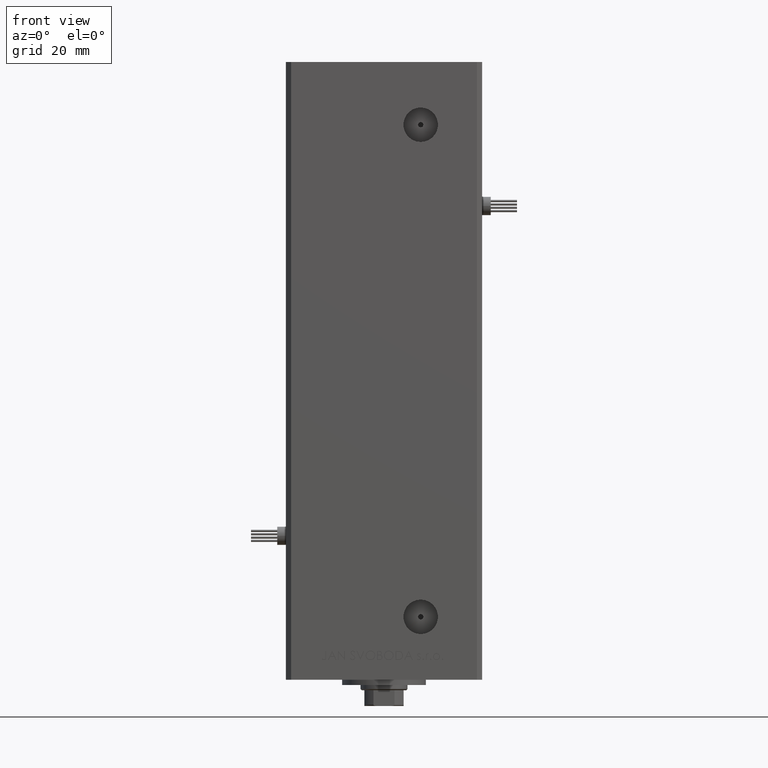
[diagram: clean part render]
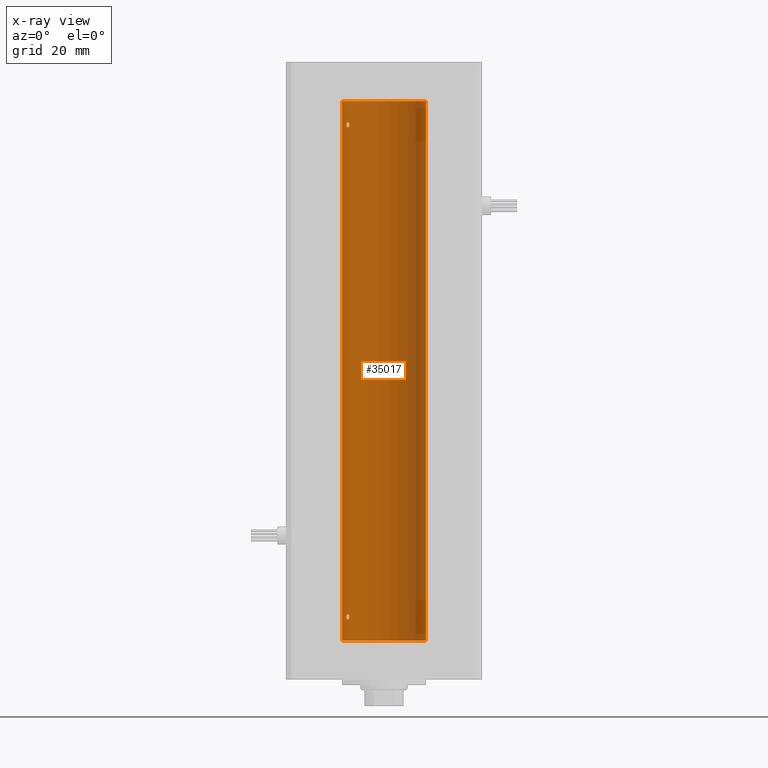
[diagram: x-ray — body ghosted, one internal face saturated and labeled with its STEP entity id]
A machine part, front view, then the same camera in x-ray: the body is ghosted and one INTERNAL B-rep face — a face not visible from any outside direction — is saturated and labeled: STEP entity #35017.
In plain terms, the highlighted cylindrical surface (partial cylindrical patch) has radius 16 mm, axis along (-0, -0, -1).
Its self-contained STEP definition (entity closure, byte-faithful):
#201 = CARTESIAN_POINT ( 'NONE',  ( -14.38749456993816800, 6.999999999999984013, 9.000000000000007105 ) ) ;
#536 = CARTESIAN_POINT ( 'NONE',  ( -13.22875655532296335, 8.999999999999982236, 9.000000000000007105 ) ) ;
#1019 = AXIS2_PLACEMENT_3D ( 'NONE', #7753, #25070, #4279 ) ;
#1224 = CARTESIAN_POINT ( 'NONE',  ( -13.49759407097375075, 8.592283911330225621, 196.1840991521276578 ) ) ;
#1236 = CARTESIAN_POINT ( 'NONE',  ( -13.56386909142670660, 8.487613976483618927, 8.118224297996086136 ) ) ;
#1484 = CARTESIAN_POINT ( 'NONE',  ( -14.11621438951178398, 7.533308783217012028, 196.1065710718395110 ) ) ;
#1496 = CARTESIAN_POINT ( 'NONE',  ( -13.22875655532296513, 8.999999999999982236, 8.929565622361650412 ) ) ;
#1749 = CARTESIAN_POINT ( 'NONE',  ( -14.38749456993815556, 6.999999999999997335, 196.8571474096353313 ) ) ;
#1760 = CARTESIAN_POINT ( 'NONE',  ( -13.37674940693423054, 8.779234808442856419, 8.360244157126787812 ) ) ;
#1816 = CARTESIAN_POINT ( 'NONE',  ( -16.00000000000000000, 0.000000000000000000, 206.0000000000000000 ) ) ;
#2090 = B_SPLINE_CURVE_WITH_KNOTS ( 'NONE', 3,
 ( #11318, #4107, #43849, #48106, #19589, #11058, #7574, #7061, #35866, #44368, #3577, #23324, #52362, #15852, #23844, #31602 ),
 .UNSPECIFIED., .F., .F.,
 ( 4, 2, 2, 2, 2, 2, 2, 4 ),
 ( 0.003377672193071779884, 0.003799209865779893530, 0.004220747538488007176, 0.005063822883904185029, 0.005485360556612275257, 0.005906898229320365484, 0.006328435902028455712, 0.006749973574736545072 ),
 .UNSPECIFIED. ) ;
#2534 = CARTESIAN_POINT ( 'NONE',  ( -13.22875655532295802, 8.999999999999996447, 196.9999999999999716 ) ) ;
#2599 = DIRECTION ( 'NONE',  ( 1.000000000000000000, 0.000000000000000000, 0.000000000000000000 ) ) ;
#2839 = CIRCLE ( 'NONE', #32682, 16.00000000000000000 ) ;
#3554 = EDGE_CURVE ( 'NONE', #52311, #13503, #5031, .T. ) ;
#3577 = CARTESIAN_POINT ( 'NONE',  ( -14.17576283486774713, 7.420212263225987925, 197.8252530343043532 ) ) ;
#4107 = CARTESIAN_POINT ( 'NONE',  ( -13.22875655532296157, 8.999999999999998224, 197.1406447609177235 ) ) ;
#4279 = DIRECTION ( 'NONE',  ( 1.000000000000000000, 0.000000000000000000, 0.000000000000000000 ) ) ;
#4969 = CARTESIAN_POINT ( 'NONE',  ( -13.77582987033441952, 8.139210687602698613, 8.002110545841825129 ) ) ;
#5031 = LINE ( 'NONE', #1816, #44372 ) ;
#5218 = CARTESIAN_POINT ( 'NONE',  ( -13.32426099938365383, 8.858246960865843178, 196.4688748775330112 ) ) ;
#5450 = B_SPLINE_CURVE_WITH_KNOTS ( 'NONE', 3,
 ( #16454, #41240, #40981, #32474, #36994, #44963, #32993, #45489, #16712, #33520, #8442, #12194, #48967, #33255, #12451, #49221 ),
 .UNSPECIFIED., .F., .F.,
 ( 4, 2, 2, 2, 2, 2, 2, 4 ),
 ( 0.003377672193071775547, 0.003799209865779873581, 0.004220747538487971615, 0.005063822883904167682, 0.005485360556612266583, 0.005906898229320366352, 0.006328435902028466120, 0.006749973574736565021 ),
 .UNSPECIFIED. ) ;
#5487 = CARTESIAN_POINT ( 'NONE',  ( -14.27547848986623080, 7.226527013162187707, 196.3525557301815638 ) ) ;
#5600 = LINE ( 'NONE', #5861, #46698 ) ;
#5712 = CARTESIAN_POINT ( 'NONE',  ( -14.38749456993815912, 6.999999999999998224, 196.9999999999999716 ) ) ;
#5861 = CARTESIAN_POINT ( 'NONE',  ( 16.00000000000000000, 1.959434878635765131E-15, 206.0000000000000000 ) ) ;
#6632 = CYLINDRICAL_SURFACE ( 'NONE', #51962, 16.00000000000000000 ) ;
#6887 = EDGE_CURVE ( 'NONE', #42470, #18062, #2090, .T. ) ;
#7061 = CARTESIAN_POINT ( 'NONE',  ( -13.91892506969882426, 7.891973478508846895, 198.0015521226324324 ) ) ;
#7574 = CARTESIAN_POINT ( 'NONE',  ( -13.70792461986390798, 8.256614593260307444, 197.9966215356422765 ) ) ;
#7666 = CARTESIAN_POINT ( 'NONE',  ( -14.31660136508400072, 7.144151923086045741, 8.464621795444484675 ) ) ;
#7753 = CARTESIAN_POINT ( 'NONE',  ( 0.000000000000000000, 0.000000000000000000, 0.000000000000000000 ) ) ;
#7939 = EDGE_CURVE ( 'NONE', #9921, #52311, #2839, .T. ) ;
#8108 = EDGE_LOOP ( 'NONE', ( #26546, #37714, #30951, #44051 ) ) ;
#8442 = CARTESIAN_POINT ( 'NONE',  ( -14.17576283486775779, 7.420212263225971050, 9.825253034304363808 ) ) ;
#9921 = VERTEX_POINT ( 'NONE', #20741 ) ;
#10022 = CARTESIAN_POINT ( 'NONE',  ( -13.25390108270226364, 8.962947079338375644, 8.721435762358465738 ) ) ;
#11058 = CARTESIAN_POINT ( 'NONE',  ( -13.55800260393082901, 8.498809056167511145, 197.9036434462101965 ) ) ;
#11144 = VERTEX_POINT ( 'NONE', #32172 ) ;
#11318 = CARTESIAN_POINT ( 'NONE',  ( -13.22875655532295802, 8.999999999999996447, 196.9999999999999716 ) ) ;
#11326 = CARTESIAN_POINT ( 'NONE',  ( -13.22875655532295802, 8.999999999999998224, 196.9295656223616220 ) ) ;
#11365 = CARTESIAN_POINT ( 'NONE',  ( -16.00000000000000000, 0.000000000000000000, 0.000000000000000000 ) ) ;
#12194 = CARTESIAN_POINT ( 'NONE',  ( -14.27521483392929902, 7.227035590538620546, 9.647859870688199280 ) ) ;
#12384 = ORIENTED_EDGE ( 'NONE', *, *, #42823, .F. ) ;
#12451 = CARTESIAN_POINT ( 'NONE',  ( -14.38749456993816978, 6.999999999999985789, 9.142625441524216967 ) ) ;
#12461 = CARTESIAN_POINT ( 'NONE',  ( -14.27547848986623258, 7.226527013162171720, 8.352555730181538962 ) ) ;
#12718 = ORIENTED_EDGE ( 'NONE', *, *, #33159, .F. ) ;
#13225 = CARTESIAN_POINT ( 'NONE',  ( -13.37674940693422698, 8.779234808442867077, 196.3602441571267718 ) ) ;
#13485 = CARTESIAN_POINT ( 'NONE',  ( -14.38749456993815912, 6.999999999999998224, 196.9999999999999716 ) ) ;
#13503 = VERTEX_POINT ( 'NONE', #11365 ) ;
#14379 = DIRECTION ( 'NONE',  ( -1.000000000000000000, 0.000000000000000000, 0.000000000000000000 ) ) ;
#15852 = CARTESIAN_POINT ( 'NONE',  ( -14.37227256866306213, 7.031482256185710433, 197.2844572409764510 ) ) ;
#16149 = B_SPLINE_CURVE_WITH_KNOTS ( 'NONE', 3,
 ( #201, #20982, #44189, #7666, #12461, #23932, #40207, #28725, #44978, #4969, #46021, #1236, #29503, #1760, #33267, #45754, #10022, #22295, #1496, #34322 ),
 .UNSPECIFIED., .F., .F.,
 ( 4, 2, 2, 2, 2, 2, 2, 2, 2, 4 ),
 ( 0.000000000000000000, 0.0004222090241339719434, 0.0008444180482679438868, 0.001266627072401915830, 0.001688836096535887774, 0.002111045120669859717, 0.002533254144803831660, 0.002955463168937803604, 0.003166567681004789359, 0.003377672193071775547 ),
 .UNSPECIFIED. ) ;
#16454 = CARTESIAN_POINT ( 'NONE',  ( -13.22875655532296335, 8.999999999999982236, 9.000000000000007105 ) ) ;
#16712 = CARTESIAN_POINT ( 'NONE',  ( -13.98878315975730224, 7.767347947480332415, 9.980546143261287639 ) ) ;
#17853 = CARTESIAN_POINT ( 'NONE',  ( 16.00000000000000000, 1.959434878635765131E-15, 0.000000000000000000 ) ) ;
#18062 = VERTEX_POINT ( 'NONE', #5712 ) ;
#18306 = EDGE_LOOP ( 'NONE', ( #51915, #21420 ) ) ;
#19589 = CARTESIAN_POINT ( 'NONE',  ( -13.37741691572086289, 8.778212469423007036, 197.6408828602271228 ) ) ;
#20182 = EDGE_CURVE ( 'NONE', #18062, #42470, #32667, .T. ) ;
#20741 = CARTESIAN_POINT ( 'NONE',  ( 16.00000000000000000, 1.959434878635765131E-15, 206.0000000000000000 ) ) ;
#20982 = CARTESIAN_POINT ( 'NONE',  ( -14.38749456993816445, 6.999999999999982236, 8.857147409635420132 ) ) ;
#21420 = ORIENTED_EDGE ( 'NONE', *, *, #6887, .F. ) ;
#21493 = CARTESIAN_POINT ( 'NONE',  ( -13.25390108270225298, 8.962947079338393408, 196.7214357623584817 ) ) ;
#21757 = CARTESIAN_POINT ( 'NONE',  ( -13.77582987033441064, 8.139210687602716376, 196.0021105458418447 ) ) ;
#22295 = CARTESIAN_POINT ( 'NONE',  ( -13.23400746336173484, 8.992294519018072307, 8.857814559023026391 ) ) ;
#23324 = CARTESIAN_POINT ( 'NONE',  ( -14.27521483392929369, 7.227035590538639198, 197.6478598706882508 ) ) ;
#23844 = CARTESIAN_POINT ( 'NONE',  ( -14.38749456993816089, 6.999999999999999112, 197.1426254415242454 ) ) ;
#23932 = CARTESIAN_POINT ( 'NONE',  ( -14.17528142432534288, 7.421143801852442934, 8.173943073538671555 ) ) ;
#25070 = DIRECTION ( 'NONE',  ( -0.000000000000000000, 0.000000000000000000, 1.000000000000000000 ) ) ;
#25754 = CARTESIAN_POINT ( 'NONE',  ( -14.17528142432533755, 7.421143801852456257, 196.1739430735386520 ) ) ;
#25994 = CARTESIAN_POINT ( 'NONE',  ( -13.22875655532295802, 8.999999999999996447, 196.9999999999999716 ) ) ;
#26347 = VERTEX_POINT ( 'NONE', #536 ) ;
#26502 = VERTEX_POINT ( 'NONE', #17853 ) ;
#26546 = ORIENTED_EDGE ( 'NONE', *, *, #30635, .F. ) ;
#28725 = CARTESIAN_POINT ( 'NONE',  ( -13.98699950016873039, 7.770591669637105348, 8.018476816648488992 ) ) ;
#29490 = CARTESIAN_POINT ( 'NONE',  ( -13.26838749541400730, 8.941532915076043864, 196.6562177939213427 ) ) ;
#29503 = CARTESIAN_POINT ( 'NONE',  ( -13.49759407097375608, 8.592283911330213186, 8.184099152127679133 ) ) ;
#30635 = EDGE_CURVE ( 'NONE', #9921, #26502, #5600, .T. ) ;
#30648 = FACE_BOUND ( 'NONE', #18306, .T. ) ;
#30951 = ORIENTED_EDGE ( 'NONE', *, *, #3554, .T. ) ;
#31602 = CARTESIAN_POINT ( 'NONE',  ( -14.38749456993815912, 6.999999999999998224, 196.9999999999999716 ) ) ;
#31673 = CARTESIAN_POINT ( 'NONE',  ( 0.000000000000000000, 0.000000000000000000, 206.0000000000000000 ) ) ;
#32172 = CARTESIAN_POINT ( 'NONE',  ( -14.38749456993816800, 6.999999999999984013, 9.000000000000007105 ) ) ;
#32474 = CARTESIAN_POINT ( 'NONE',  ( -13.32457971225033866, 8.857769707964637362, 9.531999662746560631 ) ) ;
#32667 = B_SPLINE_CURVE_WITH_KNOTS ( 'NONE', 3,
 ( #13485, #1749, #34309, #50543, #5487, #25754, #1484, #45741, #42541, #21757, #34047, #37509, #1224, #13225, #5218, #29490, #21493, #46792, #11326, #2534 ),
 .UNSPECIFIED., .F., .F.,
 ( 4, 2, 2, 2, 2, 2, 2, 2, 2, 4 ),
 ( 0.000000000000000000, 0.0004222090241339814844, 0.0008444180482679629687, 0.001266627072401944453, 0.001688836096535925937, 0.002111045120669907422, 0.002533254144803888906, 0.002955463168937870391, 0.003166567681004825354, 0.003377672193071779884 ),
 .UNSPECIFIED. ) ;
#32682 = AXIS2_PLACEMENT_3D ( 'NONE', #31673, #39136, #2599 ) ;
#32993 = CARTESIAN_POINT ( 'NONE',  ( -13.70792461986391864, 8.256614593260295010, 9.996621535642280065 ) ) ;
#33159 = EDGE_CURVE ( 'NONE', #26347, #11144, #5450, .T. ) ;
#33255 = CARTESIAN_POINT ( 'NONE',  ( -14.37227256866306746, 7.031482256185695334, 9.284457240976488279 ) ) ;
#33267 = CARTESIAN_POINT ( 'NONE',  ( -13.32426099938365915, 8.858246960865836073, 8.468874877532975631 ) ) ;
#33520 = CARTESIAN_POINT ( 'NONE',  ( -14.11618354197462644, 7.533333301880464461, 9.893207651933423108 ) ) ;
#34047 = CARTESIAN_POINT ( 'NONE',  ( -13.70481462797717320, 8.258098555717507949, 196.0259974772910994 ) ) ;
#34309 = CARTESIAN_POINT ( 'NONE',  ( -14.37250282441143945, 7.031013007322937547, 196.7168569960372793 ) ) ;
#34322 = CARTESIAN_POINT ( 'NONE',  ( -13.22875655532296335, 8.999999999999982236, 9.000000000000007105 ) ) ;
#34429 = DIRECTION ( 'NONE',  ( -0.000000000000000000, -0.000000000000000000, -1.000000000000000000 ) ) ;
#34660 = FACE_OUTER_BOUND ( 'NONE', #8108, .T. ) ;
#35017 = ADVANCED_FACE ( 'NONE', ( #34660, #50895, #30648 ), #6632, .F. ) ;
#35746 = EDGE_CURVE ( 'NONE', #26502, #13503, #41898, .T. ) ;
#35866 = CARTESIAN_POINT ( 'NONE',  ( -13.98878315975728981, 7.767347947480344850, 197.9805461432612503 ) ) ;
#36994 = CARTESIAN_POINT ( 'NONE',  ( -13.37741691572086467, 8.778212469422998154, 9.640882860227108608 ) ) ;
#37509 = CARTESIAN_POINT ( 'NONE',  ( -13.56386909142669772, 8.487613976483638467, 196.1182242979961075 ) ) ;
#37714 = ORIENTED_EDGE ( 'NONE', *, *, #7939, .T. ) ;
#39136 = DIRECTION ( 'NONE',  ( -0.000000000000000000, 0.000000000000000000, 1.000000000000000000 ) ) ;
#40207 = CARTESIAN_POINT ( 'NONE',  ( -14.11621438951178575, 7.533308783216997817, 8.106571071839523412 ) ) ;
#40274 = CARTESIAN_POINT ( 'NONE',  ( -16.00000000000000000, 0.000000000000000000, 206.0000000000000000 ) ) ;
#40981 = CARTESIAN_POINT ( 'NONE',  ( -13.24976519864029889, 8.969293778684560792, 9.281535226335167366 ) ) ;
#41240 = CARTESIAN_POINT ( 'NONE',  ( -13.22875655532296335, 8.999999999999978684, 9.140644760917750133 ) ) ;
#41827 = DIRECTION ( 'NONE',  ( -0.000000000000000000, -0.000000000000000000, -1.000000000000000000 ) ) ;
#41898 = CIRCLE ( 'NONE', #1019, 16.00000000000000000 ) ;
#42470 = VERTEX_POINT ( 'NONE', #25994 ) ;
#42541 = CARTESIAN_POINT ( 'NONE',  ( -13.91838063522421187, 7.892966471903947401, 195.9981483133086897 ) ) ;
#42823 = EDGE_CURVE ( 'NONE', #11144, #26347, #16149, .T. ) ;
#43698 = CARTESIAN_POINT ( 'NONE',  ( 0.000000000000000000, 0.000000000000000000, 206.0000000000000000 ) ) ;
#43849 = CARTESIAN_POINT ( 'NONE',  ( -13.24976519864029179, 8.969293778684573226, 197.2815352263351372 ) ) ;
#44051 = ORIENTED_EDGE ( 'NONE', *, *, #35746, .F. ) ;
#44189 = CARTESIAN_POINT ( 'NONE',  ( -14.37250282441144655, 7.031013007322923336, 8.716856996037272154 ) ) ;
#44368 = CARTESIAN_POINT ( 'NONE',  ( -14.11618354197461400, 7.533333301880476895, 197.8932076519334373 ) ) ;
#44372 = VECTOR ( 'NONE', #41827, 1000.000000000000000 ) ;
#44963 = CARTESIAN_POINT ( 'NONE',  ( -13.55800260393082901, 8.498809056167502263, 9.903643446210180556 ) ) ;
#44978 = CARTESIAN_POINT ( 'NONE',  ( -13.91838063522421542, 7.892966471903923420, 7.998148313308686141 ) ) ;
#45489 = CARTESIAN_POINT ( 'NONE',  ( -13.91892506969883669, 7.891973478508838902, 10.00155212263245375 ) ) ;
#45741 = CARTESIAN_POINT ( 'NONE',  ( -13.98699950016872506, 7.770591669637118670, 196.0184768166484730 ) ) ;
#45754 = CARTESIAN_POINT ( 'NONE',  ( -13.26838749541401263, 8.941532915076029653, 8.656217793921380022 ) ) ;
#46021 = CARTESIAN_POINT ( 'NONE',  ( -13.70481462797718386, 8.258098555717490186, 8.025997477291141990 ) ) ;
#46698 = VECTOR ( 'NONE', #34429, 1000.000000000000000 ) ;
#46792 = CARTESIAN_POINT ( 'NONE',  ( -13.23400746336172418, 8.992294519018086518, 196.8578145590230122 ) ) ;
#46890 = DIRECTION ( 'NONE',  ( -0.000000000000000000, -0.000000000000000000, -1.000000000000000000 ) ) ;
#48106 = CARTESIAN_POINT ( 'NONE',  ( -13.32457971225032267, 8.857769707964649797, 197.5319996627465571 ) ) ;
#48967 = CARTESIAN_POINT ( 'NONE',  ( -14.31650799088419213, 7.144337649771898668, 9.535522627373698157 ) ) ;
#49221 = CARTESIAN_POINT ( 'NONE',  ( -14.38749456993816800, 6.999999999999984013, 9.000000000000007105 ) ) ;
#50543 = CARTESIAN_POINT ( 'NONE',  ( -14.31660136508398828, 7.144151923086062617, 196.4646217954444012 ) ) ;
#50863 = EDGE_LOOP ( 'NONE', ( #12384, #12718 ) ) ;
#50895 = FACE_BOUND ( 'NONE', #50863, .T. ) ;
#51915 = ORIENTED_EDGE ( 'NONE', *, *, #20182, .F. ) ;
#51962 = AXIS2_PLACEMENT_3D ( 'NONE', #43698, #46890, #14379 ) ;
#52311 = VERTEX_POINT ( 'NONE', #40274 ) ;
#52362 = CARTESIAN_POINT ( 'NONE',  ( -14.31650799088418324, 7.144337649771909327, 197.5355226273736378 ) ) ;